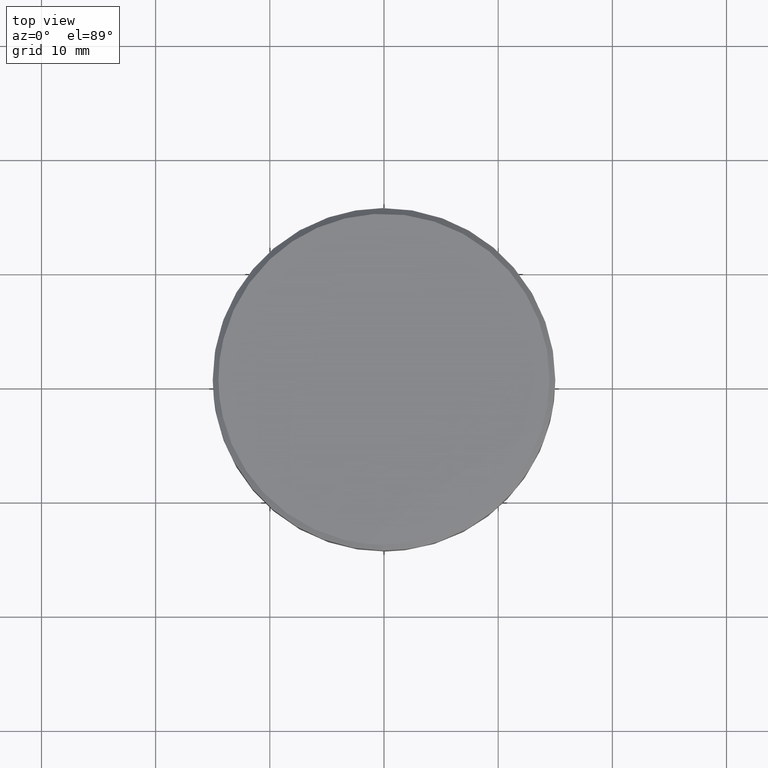
[diagram: clean part render]
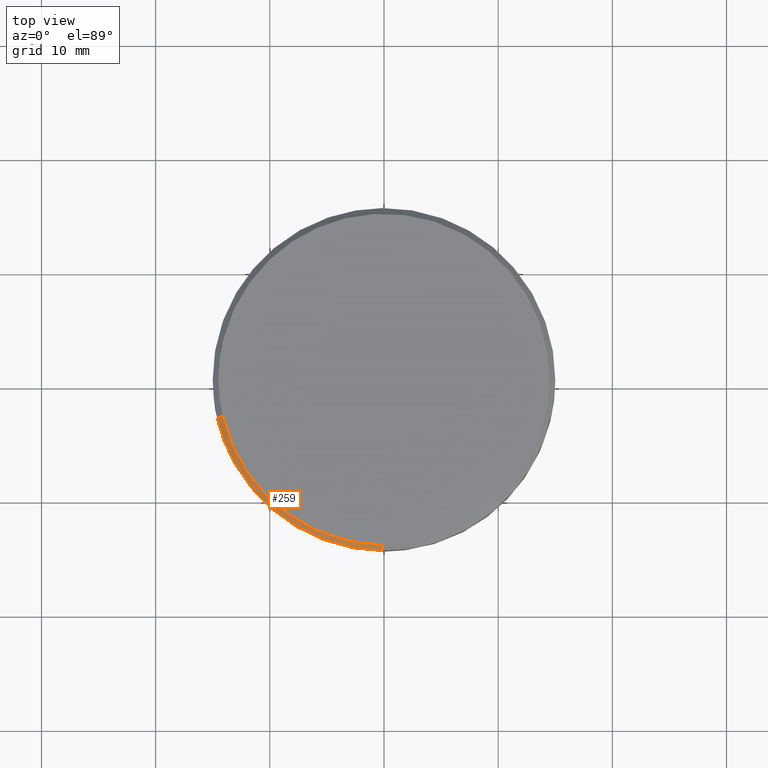
[diagram: same view with one face highlighted and labeled with its STEP entity id]
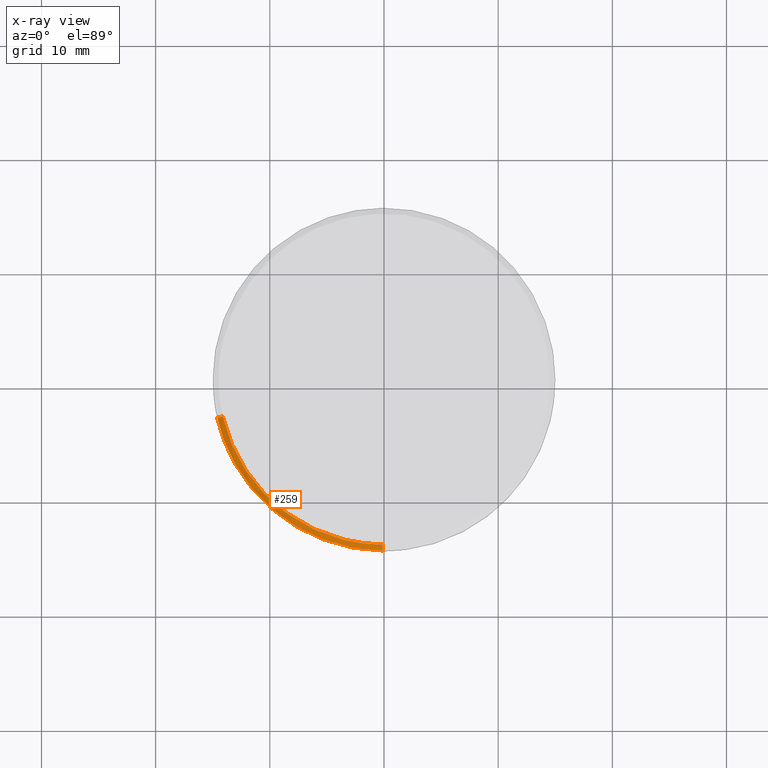
[diagram: x-ray of the same camera — body ghosted, the highlighted face saturated]
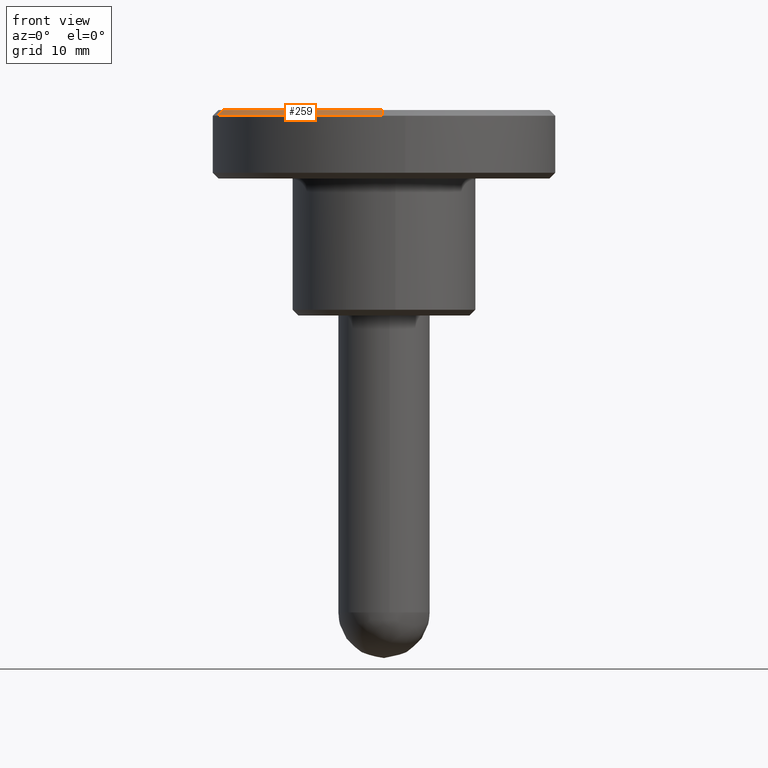
[diagram: same view with one face highlighted and labeled with its STEP entity id]
A machine part, top view. The second image highlights one B-rep face of the part: STEP entity #259.
The next image is the same camera in x-ray: the body ghosted, the highlighted face saturated — about 0% of this face is hidden behind the body in this view.
A second angle (front view) of the same face is appended — the face is thin or edge-on in the first view.
In plain terms, the highlighted face is a freeform B-spline surface patch.
Its self-contained STEP definition (entity closure, byte-faithful):
#70=CARTESIAN_POINT('',(-14.613272297678719,-3.384120676616051,17.499999999999840));
#71=VERTEX_POINT('',#70);
#87=CARTESIAN_POINT('',(-14.126163221083219,-3.271316654116937,17.999999999993580));
#88=VERTEX_POINT('',#87);
#89=CARTESIAN_POINT('',(-14.126163221083219,-3.271316654116937,17.999999999993580));
#90=CARTESIAN_POINT('',(-14.613272297678719,-3.384120676616051,17.499999999999840));
#91=QUASI_UNIFORM_CURVE('',1,(#89,#90),.UNSPECIFIED.,.F.,.U.);
#92=EDGE_CURVE('',#88,#71,#91,.T.);
#126=CARTESIAN_POINT('',(-0.126534764776618,-14.499447884436879,17.999999999993189));
#127=VERTEX_POINT('',#126);
#143=CARTESIAN_POINT('',(-0.130898032522676,-14.999428845968550,17.499999999993609));
#144=VERTEX_POINT('',#143);
#145=CARTESIAN_POINT('',(-0.126534764776618,-14.499447884436879,17.999999999993189));
#146=CARTESIAN_POINT('',(-0.130898032522676,-14.999428845968550,17.499999999993609));
#147=QUASI_UNIFORM_CURVE('',1,(#145,#146),.UNSPECIFIED.,.F.,.U.);
#148=EDGE_CURVE('',#127,#144,#147,.T.);
#215=CARTESIAN_POINT('',(-0.126425683032692,-14.486948360392230,18.012499999999999));
#216=CARTESIAN_POINT('',(-11.539096987788398,-14.387351486776240,18.012500000000003));
#217=CARTESIAN_POINT('',(-14.113985494174887,-3.268496553497049,18.012499999999999));
#218=CARTESIAN_POINT('',(-0.131009841211681,-15.012240858101830,17.487187500000001));
#219=CARTESIAN_POINT('',(-11.957501259498279,-14.909032631065896,17.487187500000001));
#220=CARTESIAN_POINT('',(-14.625754467766466,-3.387011279692647,17.487187499999997));
#228=(BOUNDED_SURFACE()B_SPLINE_SURFACE(2,1,((#215,#218),(#216,#219),(#217,#220)),.UNSPECIFIED.,.F.,.F.,.U.)B_SPLINE_SURFACE_WITH_KNOTS((3,3),(2,2),(0.0,20.802823909488470),(0.0,1.0),.UNSPECIFIED.)GEOMETRIC_REPRESENTATION_ITEM()RATIONAL_B_SPLINE_SURFACE(((1.0,1.0),(0.753969696196700,0.753969696196700),(0.921270302782944,0.921270302782944)))REPRESENTATION_ITEM('')SURFACE());
#229=CARTESIAN_POINT('',(-0.130898032522676,-14.999428845968543,17.499999999993609));
#230=CARTESIAN_POINT('',(-11.947296277276534,-14.896308700643166,17.500000000000007));
#231=CARTESIAN_POINT('',(-14.613272297678721,-3.384120676616051,17.499999999999840));
#239=(BOUNDED_CURVE()B_SPLINE_CURVE(2,(#229,#230,#231),.UNSPECIFIED.,.F.,.U.)B_SPLINE_CURVE_WITH_KNOTS((3,3),(0.751539894336091,0.961422971784581),.UNSPECIFIED.)CURVE()GEOMETRIC_REPRESENTATION_ITEM()RATIONAL_B_SPLINE_CURVE((0.996414028097851,0.753549905436736,0.923556557442739))REPRESENTATION_ITEM(''));
#240=EDGE_CURVE('',#144,#71,#239,.T.);
#241=ORIENTED_EDGE('',*,*,#240,.F.);
#242=ORIENTED_EDGE('',*,*,#148,.F.);
#243=CARTESIAN_POINT('',(-14.126163221083212,-3.271316654116937,17.999999999993573));
#244=CARTESIAN_POINT('',(-11.549053067946918,-14.399765077281751,18.000000000000007));
#245=CARTESIAN_POINT('',(-0.126534764776618,-14.499447884436881,17.999999999993189));
#253=(BOUNDED_CURVE()B_SPLINE_CURVE(2,(#243,#244,#245),.UNSPECIFIED.,.F.,.U.)B_SPLINE_CURVE_WITH_KNOTS((3,3),(0.538577028216653,0.748460105663795),.UNSPECIFIED.)CURVE()GEOMETRIC_REPRESENTATION_ITEM()RATIONAL_B_SPLINE_CURVE((0.923556557440740,0.753549905438256,0.996414028097586))REPRESENTATION_ITEM(''));
#254=EDGE_CURVE('',#88,#127,#253,.T.);
#255=ORIENTED_EDGE('',*,*,#254,.F.);
#256=ORIENTED_EDGE('',*,*,#92,.T.);
#257=EDGE_LOOP('',(#241,#242,#255,#256));
#258=FACE_OUTER_BOUND('',#257,.T.);
#259=ADVANCED_FACE('',(#258),#228,.T.);